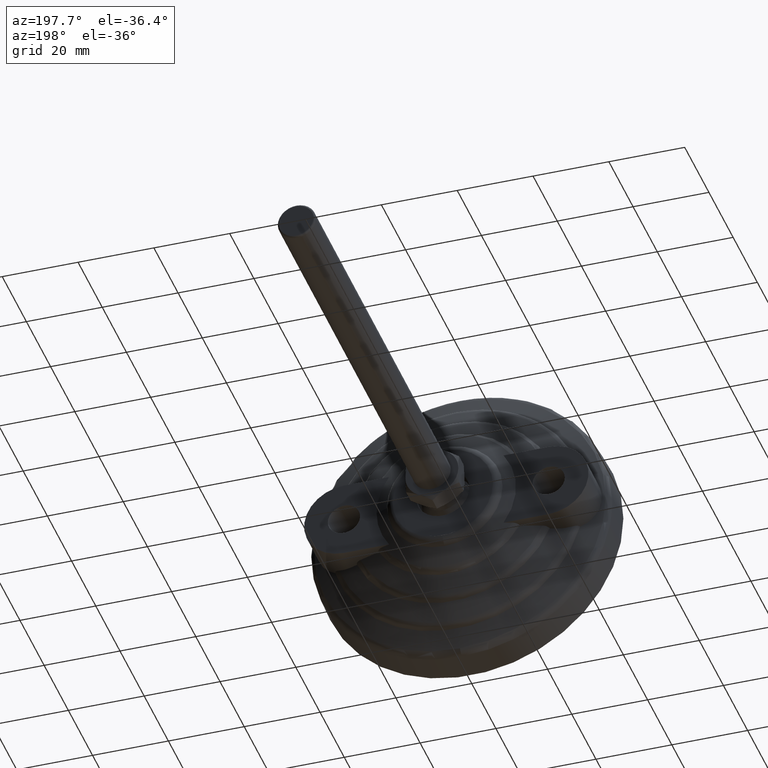
[diagram: clean part render]
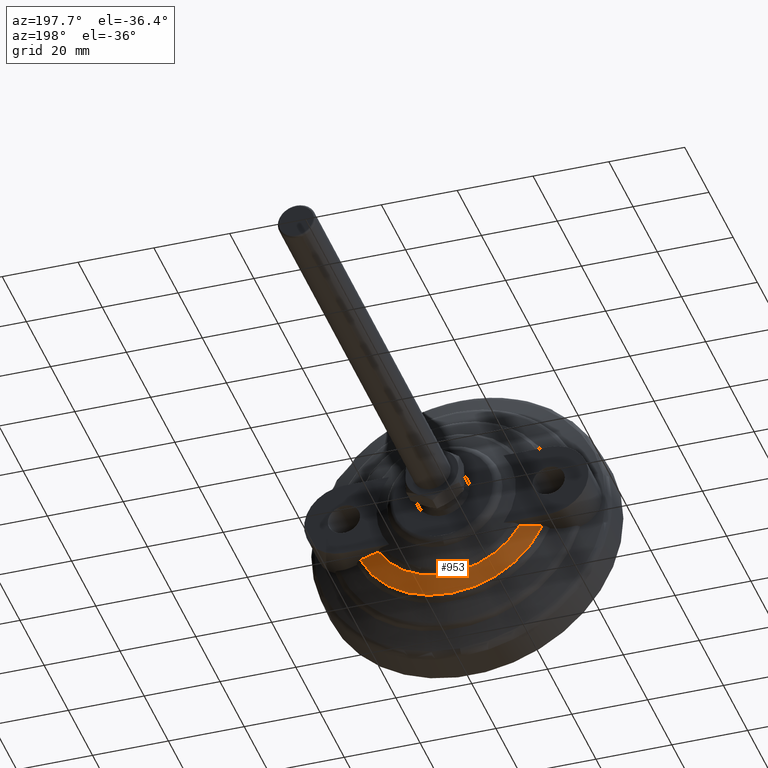
[diagram: same view with one face highlighted and labeled with its STEP entity id]
A machine part, auxiliary view. The second image highlights one B-rep face of the part: STEP entity #953.
In plain terms, the highlighted conical surface has half-angle 69.278 deg.
Its self-contained STEP definition (entity closure, byte-faithful):
#37=CONICAL_SURFACE('',#1095,23.790972958514,1.20912995397196);
#57=(
BOUNDED_CURVE()
B_SPLINE_CURVE(2,(#1607,#1608,#1609),.UNSPECIFIED.,.F.,.F.)
B_SPLINE_CURVE_WITH_KNOTS((3,3),(0.,0.570917621195301),.UNSPECIFIED.)
CURVE()
GEOMETRIC_REPRESENTATION_ITEM()
RATIONAL_B_SPLINE_CURVE((1.,1.00651975650085,1.))
REPRESENTATION_ITEM('')
);
#67=(
BOUNDED_CURVE()
B_SPLINE_CURVE(2,(#1780,#1781,#1782),.UNSPECIFIED.,.F.,.F.)
B_SPLINE_CURVE_WITH_KNOTS((3,3),(0.,0.570917621195301),.UNSPECIFIED.)
CURVE()
GEOMETRIC_REPRESENTATION_ITEM()
RATIONAL_B_SPLINE_CURVE((1.,1.00651975650085,1.))
REPRESENTATION_ITEM('')
);
#152=FACE_OUTER_BOUND('',#209,.T.);
#209=EDGE_LOOP('',(#729,#730,#731,#732));
#325=CIRCLE('',#1094,21.368855920113);
#326=CIRCLE('',#1096,26.213089996915);
#402=VERTEX_POINT('',#1595);
#403=VERTEX_POINT('',#1606);
#423=VERTEX_POINT('',#1768);
#424=VERTEX_POINT('',#1779);
#510=EDGE_CURVE('',#403,#402,#57,.T.);
#535=EDGE_CURVE('',#424,#423,#67,.T.);
#545=EDGE_CURVE('',#424,#402,#325,.T.);
#546=EDGE_CURVE('',#423,#403,#326,.T.);
#729=ORIENTED_EDGE('',*,*,#535,.T.);
#730=ORIENTED_EDGE('',*,*,#546,.T.);
#731=ORIENTED_EDGE('',*,*,#510,.T.);
#732=ORIENTED_EDGE('',*,*,#545,.F.);
#953=ADVANCED_FACE('',(#152),#37,.T.);
#1094=AXIS2_PLACEMENT_3D('',#1808,#1278,#1279);
#1095=AXIS2_PLACEMENT_3D('',#1809,#1280,#1281);
#1096=AXIS2_PLACEMENT_3D('',#1810,#1282,#1283);
#1278=DIRECTION('center_axis',(0.,1.,0.));
#1279=DIRECTION('ref_axis',(-1.,0.,0.));
#1280=DIRECTION('center_axis',(0.,-1.,0.));
#1281=DIRECTION('ref_axis',(-1.,0.,0.));
#1282=DIRECTION('center_axis',(0.,1.,0.));
#1283=DIRECTION('ref_axis',(-1.,0.,0.));
#1595=CARTESIAN_POINT('',(-18.6112332566799,18.688578845057,-10.5));
#1606=CARTESIAN_POINT('',(-24.0182448814722,16.855973555576,-10.5));
#1607=CARTESIAN_POINT('Ctrl Pts',(-24.0182448814722,16.855973555576,-10.5));
#1608=CARTESIAN_POINT('Ctrl Pts',(-21.0394999057595,17.8884976336604,-10.5));
#1609=CARTESIAN_POINT('Ctrl Pts',(-18.6112332566799,18.688578845057,-10.5));
#1768=CARTESIAN_POINT('',(24.0182448814722,16.855973555576,-10.5));
#1779=CARTESIAN_POINT('',(18.6112332566799,18.688578845057,-10.5));
#1780=CARTESIAN_POINT('Ctrl Pts',(18.6112332566799,18.688578845057,-10.5));
#1781=CARTESIAN_POINT('Ctrl Pts',(21.0394999057595,17.8884976336604,-10.5));
#1782=CARTESIAN_POINT('Ctrl Pts',(24.0182448814722,16.855973555576,-10.5));
#1808=CARTESIAN_POINT('Origin',(0.,18.688578845057,0.));
#1809=CARTESIAN_POINT('Origin',(0.,17.7722762003165,0.));
#1810=CARTESIAN_POINT('Origin',(0.,16.855973555576,0.));